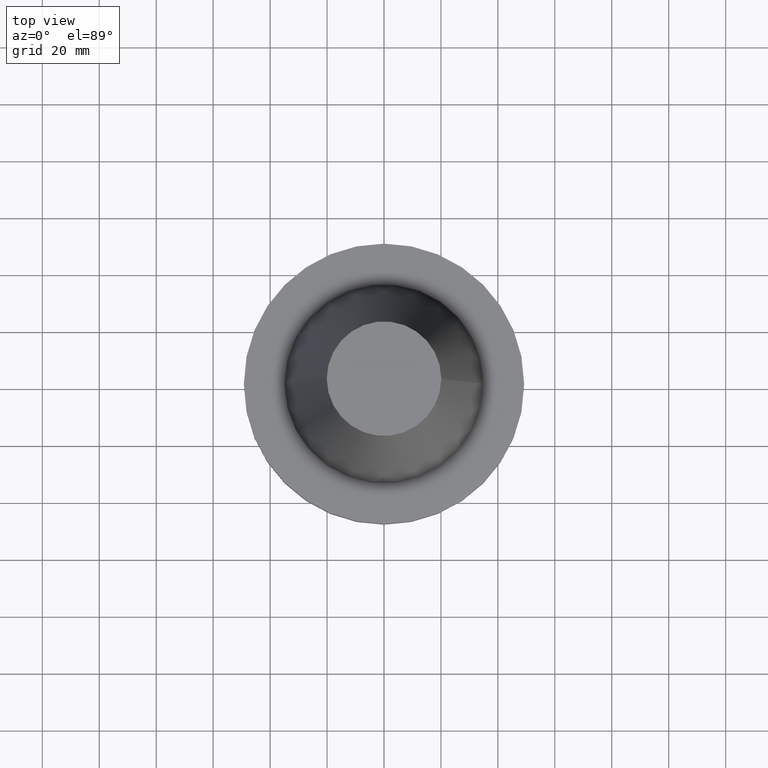
[diagram: clean part render]
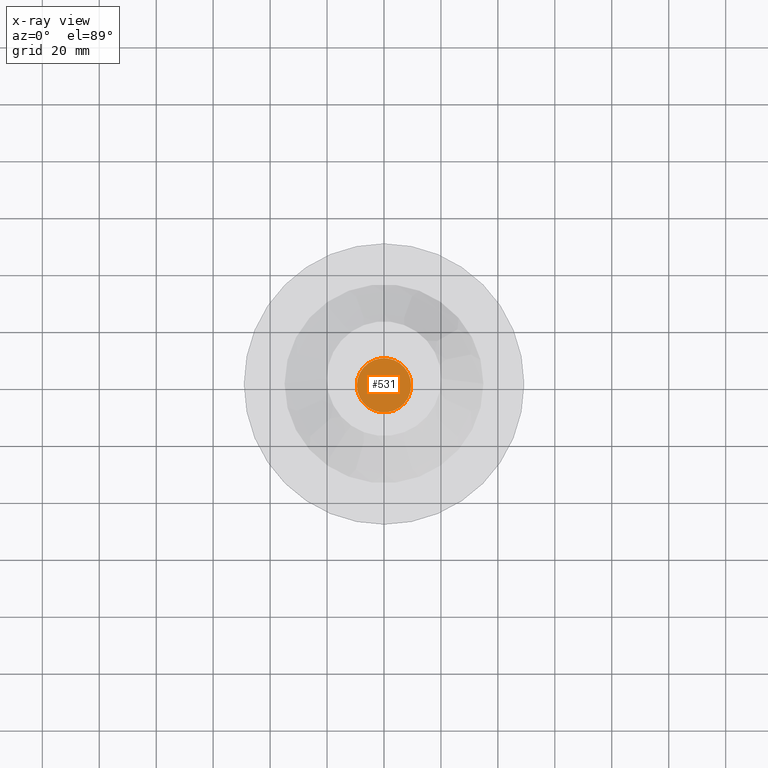
[diagram: x-ray — body ghosted, one internal face saturated and labeled with its STEP entity id]
A machine part, top view, then the same camera in x-ray: the body is ghosted and one INTERNAL B-rep face — a face not visible from any outside direction — is saturated and labeled: STEP entity #531.
In plain terms, the highlighted planar face has unit normal (0, -0, 1).
Its self-contained STEP definition (entity closure, byte-faithful):
#34 = EDGE_LOOP ( 'NONE', ( #100, #573 ) ) ;
#43 = DIRECTION ( 'NONE',  ( 1.000000000000000000, 0.000000000000000000, 0.000000000000000000 ) ) ;
#47 = FACE_OUTER_BOUND ( 'NONE', #34, .T. ) ;
#60 = CIRCLE ( 'NONE', #470, 9.524999999999989697 ) ;
#100 = ORIENTED_EDGE ( 'NONE', *, *, #854, .F. ) ;
#198 = DIRECTION ( 'NONE',  ( -0.000000000000000000, -0.000000000000000000, 1.000000000000000000 ) ) ;
#226 = CARTESIAN_POINT ( 'NONE',  ( 9.524999999999989697, 0.000000000000000000, -35.04999999999999716 ) ) ;
#291 = DIRECTION ( 'NONE',  ( 1.000000000000000000, 0.000000000000000000, 0.000000000000000000 ) ) ;
#300 = AXIS2_PLACEMENT_3D ( 'NONE', #792, #198, #460 ) ;
#436 = DIRECTION ( 'NONE',  ( 0.000000000000000000, -0.000000000000000000, 1.000000000000000000 ) ) ;
#440 = VERTEX_POINT ( 'NONE', #226 ) ;
#460 = DIRECTION ( 'NONE',  ( 1.000000000000000000, 0.000000000000000000, 0.000000000000000000 ) ) ;
#470 = AXIS2_PLACEMENT_3D ( 'NONE', #610, #735, #291 ) ;
#502 = AXIS2_PLACEMENT_3D ( 'NONE', #591, #436, #43 ) ;
#531 = ADVANCED_FACE ( 'NONE', ( #47 ), #717, .F. ) ;
#573 = ORIENTED_EDGE ( 'NONE', *, *, #741, .F. ) ;
#591 = CARTESIAN_POINT ( 'NONE',  ( 0.000000000000000000, 34.92499999999999716, -35.04999999999999716 ) ) ;
#610 = CARTESIAN_POINT ( 'NONE',  ( 0.000000000000000000, 0.000000000000000000, -35.04999999999999716 ) ) ;
#650 = CIRCLE ( 'NONE', #300, 9.524999999999989697 ) ;
#700 = VERTEX_POINT ( 'NONE', #744 ) ;
#717 = PLANE ( 'NONE',  #502 ) ;
#735 = DIRECTION ( 'NONE',  ( -0.000000000000000000, -0.000000000000000000, 1.000000000000000000 ) ) ;
#741 = EDGE_CURVE ( 'NONE', #700, #440, #650, .T. ) ;
#744 = CARTESIAN_POINT ( 'NONE',  ( -9.524999999999989697, 1.166476076187852641E-15, -35.04999999999999716 ) ) ;
#792 = CARTESIAN_POINT ( 'NONE',  ( 0.000000000000000000, 0.000000000000000000, -35.04999999999999716 ) ) ;
#854 = EDGE_CURVE ( 'NONE', #440, #700, #60, .T. ) ;